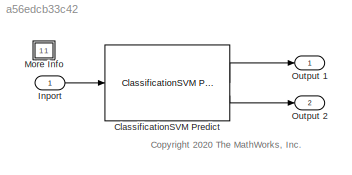
MODEL slx_a56edcb33c42
KIND model
CONFIG AbsTol = auto
CONFIG EnableMultiTasking = off
CONFIG FixedStep = auto
CONFIG MaxStep = auto
CONFIG MinStep = auto
CONFIG PreLoadFcn = if ~exist("svmMdl","var")\n    \nload ionosphere\n\nprsntX = X(1:300,:);\nprsntY = Y(1:300);\nftrX = X(301:end,:);\nftrY = Y(301:end);\n\nsvmMdl = fitcsvm(prsntX,prsntY,'Standardize',true);\n\nradarReturnInput.time = (0:50)';\nradarReturnInput.signals(1).values = ftrX;\nradarReturnInput.signals(1).dimensions = size(ftrX,2);\n\nend
CONFIG RelTol = 1e-3
CONFIG SampleTimeConstraint = Unconstrained
CONFIG SolverName = FixedStepDiscrete
CONFIG StartTime = 0.0
CONFIG StopTime = radarReturnInput.time(end)
BLOCK [Reference] ClassificationSVM Predict  REF=statsLibrary/Classification/ClassificationSVM Predict
  SourceBlock = statsLibrary/Classification/ClassificationSVM Predict
  SourceType = ClassificationSVM Predict
BLOCK [Inport] Inport
  PortDimensions = 34
BLOCK [SubSystem] More Info
  OpenFcn = showExample('stats/PredictClassLabelsUsingClassificationSVMPredictBlockExample')
BLOCK [Outport] Output 1
BLOCK [Outport] Output 2
  Port = 2
ANNOTATION (root): <copyright redacted>
LINE ClassificationSVM Predict:1 -> Output 1:1
LINE ClassificationSVM Predict:2 -> Output 2:1
LINE Inport:1 -> ClassificationSVM Predict:1
